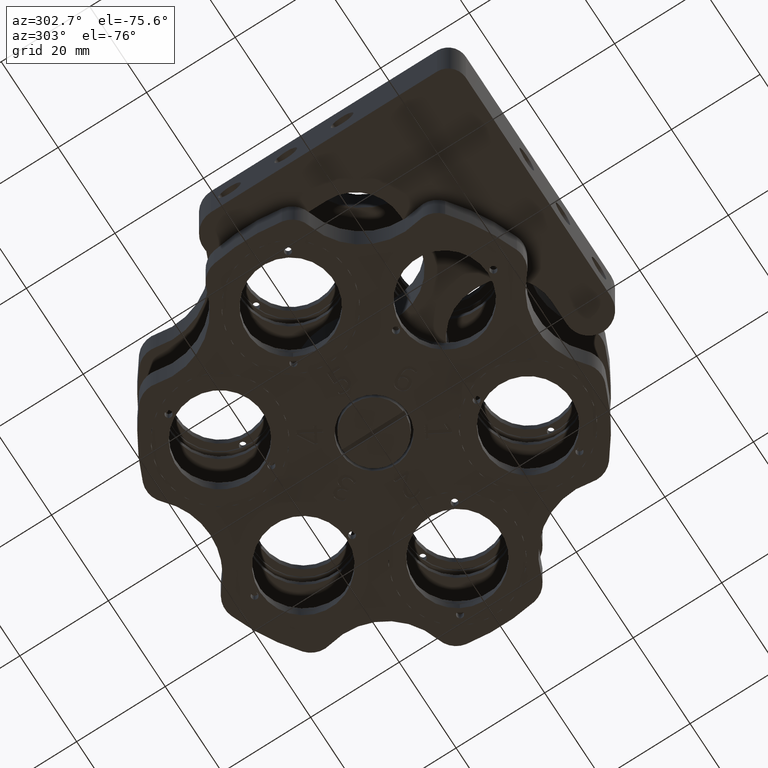
[diagram: clean part render]
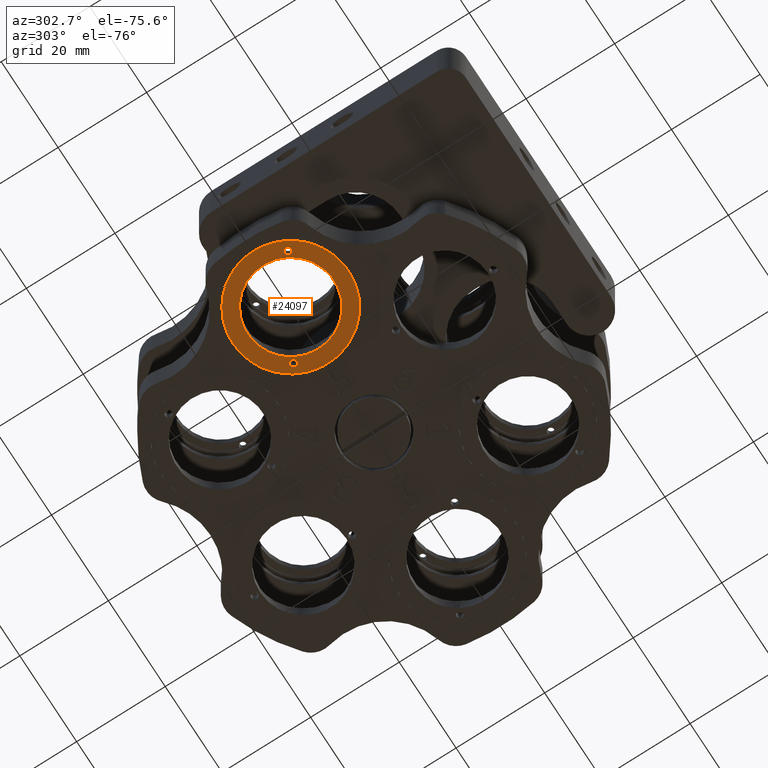
[diagram: same view with one face highlighted and labeled with its STEP entity id]
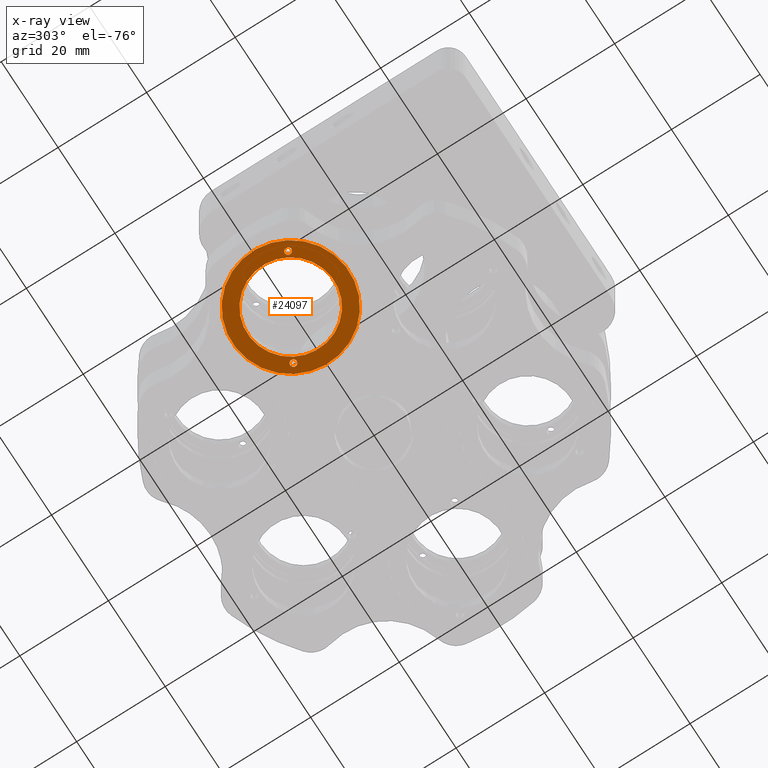
[diagram: x-ray of the same camera — body ghosted, the highlighted face saturated]
A machine part, auxiliary view. The second image highlights one B-rep face of the part: STEP entity #24097.
The next image is the same camera in x-ray: the body ghosted, the highlighted face saturated — about 0% of this face is hidden behind the body in this view.
In plain terms, the highlighted planar face has unit normal (0, -0, -1).
Its self-contained STEP definition (entity closure, byte-faithful):
#893 = CARTESIAN_POINT ( 'NONE',  ( -20.42953927527444300, 5.125000000000721200, -27.00000000000000400 ) ) ;
#1077 = AXIS2_PLACEMENT_3D ( 'NONE', #19143, #4968, #4882 ) ;
#1600 = CARTESIAN_POINT ( 'NONE',  ( -29.30629966406504700, 6.959380276422558300E-013, -27.00000000000000400 ) ) ;
#1667 = DIRECTION ( 'NONE',  ( 0.8660254037844398200, 0.4999999999999981100, 0.0000000000000000000 ) ) ;
#1753 = DIRECTION ( 'NONE',  ( 1.060540212046015700E-016, -6.123031769111918300E-017, -1.000000000000000000 ) ) ;
#2227 = AXIS2_PLACEMENT_3D ( 'NONE', #11161, #11251, #7091 ) ;
#2760 = ORIENTED_EDGE ( 'NONE', *, *, #24076, .F. ) ;
#3305 = CIRCLE ( 'NONE', #18284, 0.7500000000000101000 ) ;
#3736 = DIRECTION ( 'NONE',  ( 1.060540212046015700E-016, -6.123031769111918300E-017, -1.000000000000000000 ) ) ;
#4220 = AXIS2_PLACEMENT_3D ( 'NONE', #6046, #1753, #1667 ) ;
#4451 = EDGE_CURVE ( 'NONE', #13439, #9743, #18182, .T. ) ;
#4514 = DIRECTION ( 'NONE',  ( 1.060540212046015700E-016, -6.123031769111918300E-017, -1.000000000000000000 ) ) ;
#4882 = DIRECTION ( 'NONE',  ( -0.8660254037844390400, -0.4999999999999991100, 0.0000000000000000000 ) ) ;
#4968 = DIRECTION ( 'NONE',  ( 1.060540212046015700E-016, -6.123031769111918300E-017, -1.000000000000000000 ) ) ;
#5262 = DIRECTION ( 'NONE',  ( 1.060540212046015700E-016, -6.123031769111918300E-017, -1.000000000000000000 ) ) ;
#5298 = CARTESIAN_POINT ( 'NONE',  ( -38.83257910569404500, -5.499999999999376500, -27.00000000000002100 ) ) ;
#5361 = CIRCLE ( 'NONE', #26157, 13.15000000000014100 ) ;
#5713 = CARTESIAN_POINT ( 'NONE',  ( -29.30629966406504700, 6.959380276422558300E-013, -27.00000000000000400 ) ) ;
#6046 = CARTESIAN_POINT ( 'NONE',  ( -29.30629966406504700, 6.959380276422558300E-013, -27.00000000000000400 ) ) ;
#6682 = DIRECTION ( 'NONE',  ( 0.8660254037844398200, 0.4999999999999981100, 0.0000000000000000000 ) ) ;
#6708 = CARTESIAN_POINT ( 'NONE',  ( -38.18306005285570100, -5.124999999999373800, -27.00000000000002100 ) ) ;
#7091 = DIRECTION ( 'NONE',  ( -0.8660254037844390400, -0.4999999999999991100, 0.0000000000000000000 ) ) ;
#7172 = FACE_BOUND ( 'NONE', #12034, .T. ) ;
#7264 = AXIS2_PLACEMENT_3D ( 'NONE', #9194, #5262, #21505 ) ;
#7639 = EDGE_LOOP ( 'NONE', ( #23670, #23647 ) ) ;
#7806 = ORIENTED_EDGE ( 'NONE', *, *, #26463, .T. ) ;
#7811 = CIRCLE ( 'NONE', #7264, 0.7500000000000101000 ) ;
#8618 = DIRECTION ( 'NONE',  ( 0.8660254037844398200, 0.4999999999999981100, 0.0000000000000000000 ) ) ;
#8790 = AXIS2_PLACEMENT_3D ( 'NONE', #5713, #3736, #11744 ) ;
#9194 = CARTESIAN_POINT ( 'NONE',  ( -38.83257910569404500, -5.499999999999376500, -27.00000000000002100 ) ) ;
#9743 = VERTEX_POINT ( 'NONE', #893 ) ;
#9769 = VERTEX_POINT ( 'NONE', #23959 ) ;
#10025 = CIRCLE ( 'NONE', #4220, 13.15000000000014100 ) ;
#10735 = CIRCLE ( 'NONE', #8790, 9.750000000000106600 ) ;
#10774 = ORIENTED_EDGE ( 'NONE', *, *, #21815, .T. ) ;
#10811 = CARTESIAN_POINT ( 'NONE',  ( -17.91806560429966300, 6.575000000000669900, -27.00000000000000400 ) ) ;
#10814 = EDGE_CURVE ( 'NONE', #9743, #13439, #12401, .T. ) ;
#10922 = VERTEX_POINT ( 'NONE', #25682 ) ;
#11033 = FACE_OUTER_BOUND ( 'NONE', #15265, .T. ) ;
#11161 = CARTESIAN_POINT ( 'NONE',  ( -19.78002022243610700, 5.500000000000709700, -27.00000000000000400 ) ) ;
#11251 = DIRECTION ( 'NONE',  ( 1.060540212046015700E-016, -6.123031769111918300E-017, -1.000000000000000000 ) ) ;
#11554 = ORIENTED_EDGE ( 'NONE', *, *, #22903, .F. ) ;
#11744 = DIRECTION ( 'NONE',  ( 0.8660254037844398200, 0.4999999999999981100, 0.0000000000000000000 ) ) ;
#11747 = AXIS2_PLACEMENT_3D ( 'NONE', #16912, #18962, #6682 ) ;
#12034 = EDGE_LOOP ( 'NONE', ( #2760, #11554 ) ) ;
#12401 = CIRCLE ( 'NONE', #2227, 0.7500000000000072200 ) ;
#12661 = FACE_BOUND ( 'NONE', #7639, .T. ) ;
#13278 = VERTEX_POINT ( 'NONE', #10811 ) ;
#13439 = VERTEX_POINT ( 'NONE', #25592 ) ;
#15183 = CARTESIAN_POINT ( 'NONE',  ( -20.86255197716675600, 4.875000000000677700, -27.00000000000000400 ) ) ;
#15184 = AXIS2_PLACEMENT_3D ( 'NONE', #1600, #16029, #18095 ) ;
#15265 = EDGE_LOOP ( 'NONE', ( #10774, #7806 ) ) ;
#16029 = DIRECTION ( 'NONE',  ( 1.060540212046017700E-016, -6.123031769111906000E-017, -1.000000000000000000 ) ) ;
#16799 = CARTESIAN_POINT ( 'NONE',  ( -29.30629966406504700, 6.959380276422558300E-013, -27.00000000000000400 ) ) ;
#16912 = CARTESIAN_POINT ( 'NONE',  ( -29.30629966406504700, 6.959380276422558300E-013, -27.00000000000000400 ) ) ;
#16975 = VERTEX_POINT ( 'NONE', #6708 ) ;
#17409 = DIRECTION ( 'NONE',  ( 0.8660254037844403700, 0.4999999999999971700, 0.0000000000000000000 ) ) ;
#17798 = VERTEX_POINT ( 'NONE', #15183 ) ;
#18095 = DIRECTION ( 'NONE',  ( 0.8660254037844397100, 0.4999999999999980600, 6.123031769111936800E-017 ) ) ;
#18119 = FACE_BOUND ( 'NONE', #23184, .T. ) ;
#18182 = CIRCLE ( 'NONE', #1077, 0.7500000000000072200 ) ;
#18284 = AXIS2_PLACEMENT_3D ( 'NONE', #5298, #21452, #17409 ) ;
#18779 = CIRCLE ( 'NONE', #11747, 9.750000000000106600 ) ;
#18962 = DIRECTION ( 'NONE',  ( 1.060540212046015700E-016, -6.123031769111918300E-017, -1.000000000000000000 ) ) ;
#19143 = CARTESIAN_POINT ( 'NONE',  ( -19.78002022243610700, 5.500000000000709700, -27.00000000000000400 ) ) ;
#20096 = ORIENTED_EDGE ( 'NONE', *, *, #10814, .F. ) ;
#21452 = DIRECTION ( 'NONE',  ( 1.060540212046015700E-016, -6.123031769111918300E-017, -1.000000000000000000 ) ) ;
#21505 = DIRECTION ( 'NONE',  ( 0.8660254037844403700, 0.4999999999999971700, 0.0000000000000000000 ) ) ;
#21815 = EDGE_CURVE ( 'NONE', #9769, #13278, #5361, .T. ) ;
#22621 = VERTEX_POINT ( 'NONE', #24222 ) ;
#22903 = EDGE_CURVE ( 'NONE', #17798, #10922, #18779, .T. ) ;
#23184 = EDGE_LOOP ( 'NONE', ( #23626, #20096 ) ) ;
#23626 = ORIENTED_EDGE ( 'NONE', *, *, #4451, .F. ) ;
#23647 = ORIENTED_EDGE ( 'NONE', *, *, #24977, .F. ) ;
#23670 = ORIENTED_EDGE ( 'NONE', *, *, #24478, .F. ) ;
#23959 = CARTESIAN_POINT ( 'NONE',  ( -40.69453372383043200, -6.574999999999276300, -27.00000000000000400 ) ) ;
#24076 = EDGE_CURVE ( 'NONE', #10922, #17798, #10735, .T. ) ;
#24097 = ADVANCED_FACE ( 'NONE', ( #18119, #12661, #11033, #7172 ), #26431, .T. ) ;
#24222 = CARTESIAN_POINT ( 'NONE',  ( -39.48209815853237400, -5.874999999999375600, -27.00000000000002100 ) ) ;
#24478 = EDGE_CURVE ( 'NONE', #16975, #22621, #3305, .T. ) ;
#24977 = EDGE_CURVE ( 'NONE', #22621, #16975, #7811, .T. ) ;
#25592 = CARTESIAN_POINT ( 'NONE',  ( -19.13050116959778200, 5.875000000000720300, -27.00000000000000400 ) ) ;
#25682 = CARTESIAN_POINT ( 'NONE',  ( -37.75004735096333500, -4.874999999999285900, -27.00000000000000400 ) ) ;
#26157 = AXIS2_PLACEMENT_3D ( 'NONE', #16799, #4514, #8618 ) ;
#26431 = PLANE ( 'NONE',  #15184 ) ;
#26463 = EDGE_CURVE ( 'NONE', #13278, #9769, #10025, .T. ) ;